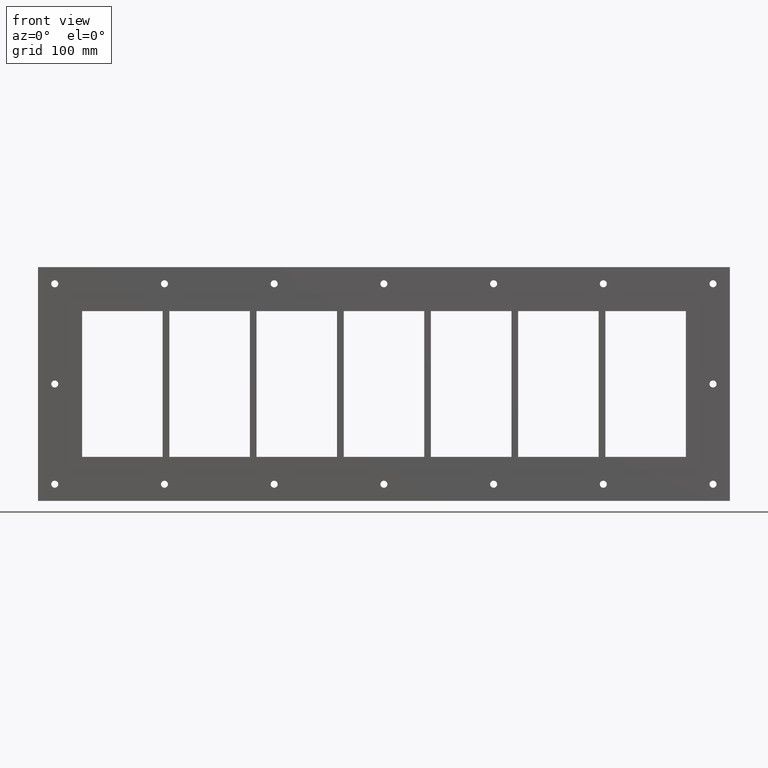
[diagram: clean part render]
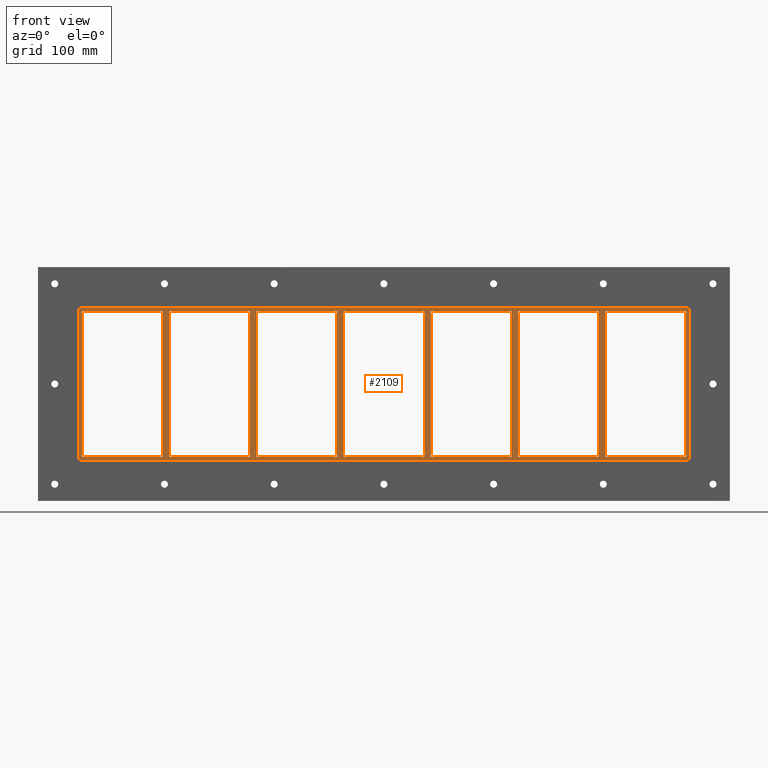
[diagram: same view with one face highlighted and labeled with its STEP entity id]
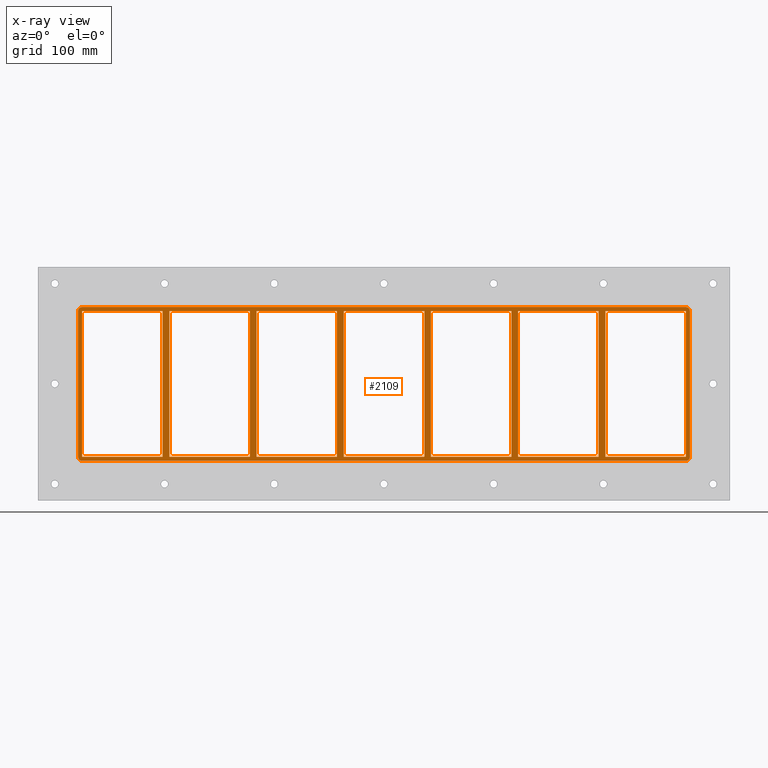
[diagram: x-ray of the same camera — body ghosted, the highlighted face saturated]
A machine part, front view. The second image highlights one B-rep face of the part: STEP entity #2109.
The next image is the same camera in x-ray: the body ghosted, the highlighted face saturated — about 0% of this face is hidden behind the body in this view.
In plain terms, the highlighted planar face has unit normal (0, 1, 0).
Its self-contained STEP definition (entity closure, byte-faithful):
#521=CARTESIAN_POINT('',(321.24999999999784,-3.0,-108.99999999999999));
#522=VERTEX_POINT('',#521);
#523=CARTESIAN_POINT('',(321.24999999999784,-3.0,108.99999999999999));
#524=VERTEX_POINT('',#523);
#525=CARTESIAN_POINT('',(321.24999999999784,-3.0,-108.99999999999999));
#526=DIRECTION('',(0.0,0.0,1.0));
#527=VECTOR('',#526,217.99999999999997);
#528=LINE('',#525,#527);
#529=EDGE_CURVE('',#522,#524,#528,.T.);
#561=CARTESIAN_POINT('',(331.25,-3.0,108.99999999999999));
#562=VERTEX_POINT('',#561);
#563=CARTESIAN_POINT('',(331.25,-3.0,-108.9999999999869));
#564=VERTEX_POINT('',#563);
#565=CARTESIAN_POINT('',(331.25,-3.0,108.99999999999999));
#566=DIRECTION('',(0.0,0.0,-1.0));
#567=VECTOR('',#566,217.9999999999869);
#568=LINE('',#565,#567);
#569=EDGE_CURVE('',#562,#564,#568,.T.);
#601=CARTESIAN_POINT('',(190.74999999999793,-3.0,-108.99999999999999));
#602=VERTEX_POINT('',#601);
#603=CARTESIAN_POINT('',(190.74999999999793,-3.0,108.99999999999999));
#604=VERTEX_POINT('',#603);
#605=CARTESIAN_POINT('',(190.74999999999793,-3.0,-108.99999999999999));
#606=DIRECTION('',(0.0,0.0,1.0));
#607=VECTOR('',#606,217.99999999999997);
#608=LINE('',#605,#607);
#609=EDGE_CURVE('',#602,#604,#608,.T.);
#641=CARTESIAN_POINT('',(200.75000000000006,-3.0,108.99999999999999));
#642=VERTEX_POINT('',#641);
#643=CARTESIAN_POINT('',(200.75000000000006,-3.0,-108.9999999999869));
#644=VERTEX_POINT('',#643);
#645=CARTESIAN_POINT('',(200.75000000000006,-3.0,108.99999999999999));
#646=DIRECTION('',(0.0,0.0,-1.0));
#647=VECTOR('',#646,217.9999999999869);
#648=LINE('',#645,#647);
#649=EDGE_CURVE('',#642,#644,#648,.T.);
#681=CARTESIAN_POINT('',(60.249999999997925,-3.0,-108.99999999999999));
#682=VERTEX_POINT('',#681);
#683=CARTESIAN_POINT('',(60.249999999997925,-3.0,108.99999999999999));
#684=VERTEX_POINT('',#683);
#685=CARTESIAN_POINT('',(60.249999999997925,-3.0,-108.99999999999999));
#686=DIRECTION('',(0.0,0.0,1.0));
#687=VECTOR('',#686,217.99999999999997);
#688=LINE('',#685,#687);
#689=EDGE_CURVE('',#682,#684,#688,.T.);
#721=CARTESIAN_POINT('',(70.250000000000057,-3.0,108.99999999999999));
#722=VERTEX_POINT('',#721);
#723=CARTESIAN_POINT('',(70.250000000000057,-3.0,-108.9999999999869));
#724=VERTEX_POINT('',#723);
#725=CARTESIAN_POINT('',(70.250000000000057,-3.0,108.99999999999999));
#726=DIRECTION('',(0.0,0.0,-1.0));
#727=VECTOR('',#726,217.9999999999869);
#728=LINE('',#725,#727);
#729=EDGE_CURVE('',#722,#724,#728,.T.);
#761=CARTESIAN_POINT('',(-70.250000000002117,-3.0,-108.99999999999999));
#762=VERTEX_POINT('',#761);
#763=CARTESIAN_POINT('',(-70.250000000002117,-3.0,108.99999999999999));
#764=VERTEX_POINT('',#763);
#765=CARTESIAN_POINT('',(-70.250000000002117,-3.0,-108.99999999999999));
#766=DIRECTION('',(0.0,0.0,1.0));
#767=VECTOR('',#766,217.99999999999997);
#768=LINE('',#765,#767);
#769=EDGE_CURVE('',#762,#764,#768,.T.);
#801=CARTESIAN_POINT('',(-60.249999999999986,-3.0,108.99999999999999));
#802=VERTEX_POINT('',#801);
#803=CARTESIAN_POINT('',(-60.249999999999986,-3.0,-108.9999999999869));
#804=VERTEX_POINT('',#803);
#805=CARTESIAN_POINT('',(-60.249999999999986,-3.0,108.99999999999999));
#806=DIRECTION('',(0.0,0.0,-1.0));
#807=VECTOR('',#806,217.9999999999869);
#808=LINE('',#805,#807);
#809=EDGE_CURVE('',#802,#804,#808,.T.);
#841=CARTESIAN_POINT('',(-200.75000000000213,-3.0,-108.99999999999999));
#842=VERTEX_POINT('',#841);
#843=CARTESIAN_POINT('',(-200.75000000000213,-3.0,108.99999999999999));
#844=VERTEX_POINT('',#843);
#845=CARTESIAN_POINT('',(-200.75000000000213,-3.0,-108.99999999999999));
#846=DIRECTION('',(0.0,0.0,1.0));
#847=VECTOR('',#846,217.99999999999997);
#848=LINE('',#845,#847);
#849=EDGE_CURVE('',#842,#844,#848,.T.);
#881=CARTESIAN_POINT('',(-190.75,-3.0,108.99999999999999));
#882=VERTEX_POINT('',#881);
#883=CARTESIAN_POINT('',(-190.75,-3.0,-108.9999999999869));
#884=VERTEX_POINT('',#883);
#885=CARTESIAN_POINT('',(-190.75,-3.0,108.99999999999999));
#886=DIRECTION('',(0.0,0.0,-1.0));
#887=VECTOR('',#886,217.9999999999869);
#888=LINE('',#885,#887);
#889=EDGE_CURVE('',#882,#884,#888,.T.);
#930=CARTESIAN_POINT('',(-321.25,-3.0,-108.9999999999869));
#931=VERTEX_POINT('',#930);
#938=CARTESIAN_POINT('',(-200.75000000000213,-3.0,-108.99999999999999));
#939=DIRECTION('',(-1.0,0.0,0.0));
#940=VECTOR('',#939,120.49999999999787);
#941=LINE('',#938,#940);
#942=EDGE_CURVE('',#842,#931,#941,.T.);
#960=CARTESIAN_POINT('',(-70.250000000002132,-3.0,-108.99999999999999));
#961=DIRECTION('',(-1.0,0.0,0.0));
#962=VECTOR('',#961,120.49999999999784);
#963=LINE('',#960,#962);
#964=EDGE_CURVE('',#762,#884,#963,.T.);
#982=CARTESIAN_POINT('',(60.249999999997925,-3.0,-108.99999999999999));
#983=DIRECTION('',(-1.0,0.0,0.0));
#984=VECTOR('',#983,120.4999999999979);
#985=LINE('',#982,#984);
#986=EDGE_CURVE('',#682,#804,#985,.T.);
#1004=CARTESIAN_POINT('',(190.74999999999795,-3.0,-108.99999999999999));
#1005=DIRECTION('',(-1.0,0.0,0.0));
#1006=VECTOR('',#1005,120.4999999999979);
#1007=LINE('',#1004,#1006);
#1008=EDGE_CURVE('',#602,#724,#1007,.T.);
#1026=CARTESIAN_POINT('',(321.24999999999784,-3.0,-108.99999999999999));
#1027=DIRECTION('',(-1.0,0.0,0.0));
#1028=VECTOR('',#1027,120.49999999999778);
#1029=LINE('',#1026,#1028);
#1030=EDGE_CURVE('',#522,#644,#1029,.T.);
#1041=CARTESIAN_POINT('',(451.75000000000006,-3.0,-108.99999999999999));
#1042=VERTEX_POINT('',#1041);
#1043=CARTESIAN_POINT('',(451.75000000000006,-3.0,-108.99999999999999));
#1044=DIRECTION('',(-1.0,0.0,0.0));
#1045=VECTOR('',#1044,120.50000000000006);
#1046=LINE('',#1043,#1045);
#1047=EDGE_CURVE('',#1042,#564,#1046,.T.);
#1072=CARTESIAN_POINT('',(-321.25,-3.0,108.99999999999999));
#1073=VERTEX_POINT('',#1072);
#1074=CARTESIAN_POINT('',(-321.25,-3.0,108.99999999999999));
#1075=DIRECTION('',(1.0,0.0,0.0));
#1076=VECTOR('',#1075,120.49999999999787);
#1077=LINE('',#1074,#1076);
#1078=EDGE_CURVE('',#1073,#844,#1077,.T.);
#1103=CARTESIAN_POINT('',(-190.75,-3.0,108.99999999999999));
#1104=DIRECTION('',(1.0,0.0,0.0));
#1105=VECTOR('',#1104,120.49999999999787);
#1106=LINE('',#1103,#1105);
#1107=EDGE_CURVE('',#882,#764,#1106,.T.);
#1125=CARTESIAN_POINT('',(-60.25,-3.0,108.99999999999999));
#1126=DIRECTION('',(1.0,0.0,0.0));
#1127=VECTOR('',#1126,120.49999999999793);
#1128=LINE('',#1125,#1127);
#1129=EDGE_CURVE('',#802,#684,#1128,.T.);
#1147=CARTESIAN_POINT('',(70.250000000000028,-3.0,108.99999999999999));
#1148=DIRECTION('',(1.0,0.0,0.0));
#1149=VECTOR('',#1148,120.4999999999979);
#1150=LINE('',#1147,#1149);
#1151=EDGE_CURVE('',#722,#604,#1150,.T.);
#1177=CARTESIAN_POINT('',(451.75000000000006,-3.0,108.99999999999999));
#1178=VERTEX_POINT('',#1177);
#1185=CARTESIAN_POINT('',(331.25,-3.0,108.99999999999999));
#1186=DIRECTION('',(1.0,0.0,0.0));
#1187=VECTOR('',#1186,120.5);
#1188=LINE('',#1185,#1187);
#1189=EDGE_CURVE('',#562,#1178,#1188,.T.);
#1200=CARTESIAN_POINT('',(200.75000000000009,-3.0,108.99999999999999));
#1201=DIRECTION('',(1.0,0.0,0.0));
#1202=VECTOR('',#1201,120.49999999999787);
#1203=LINE('',#1200,#1202);
#1204=EDGE_CURVE('',#642,#524,#1203,.T.);
#1221=CARTESIAN_POINT('',(-331.25000000000216,-3.0,-108.99999999999999));
#1222=VERTEX_POINT('',#1221);
#1223=CARTESIAN_POINT('',(-331.25000000000216,-3.0,108.99999999999999));
#1224=VERTEX_POINT('',#1223);
#1225=CARTESIAN_POINT('',(-331.25000000000216,-3.0,-108.99999999999999));
#1226=DIRECTION('',(0.0,0.0,1.0));
#1227=VECTOR('',#1226,217.99999999999997);
#1228=LINE('',#1225,#1227);
#1229=EDGE_CURVE('',#1222,#1224,#1228,.T.);
#1261=CARTESIAN_POINT('',(-321.25,-3.0,108.99999999999999));
#1262=DIRECTION('',(0.0,0.0,-1.0));
#1263=VECTOR('',#1262,217.9999999999869);
#1264=LINE('',#1261,#1263);
#1265=EDGE_CURVE('',#1073,#931,#1264,.T.);
#1292=CARTESIAN_POINT('',(-451.75000000000006,-3.0,-108.99999999999999));
#1293=VERTEX_POINT('',#1292);
#1300=CARTESIAN_POINT('',(-331.25000000000216,-3.0,-108.99999999999999));
#1301=DIRECTION('',(-1.0,0.0,0.0));
#1302=VECTOR('',#1301,120.49999999999784);
#1303=LINE('',#1300,#1302);
#1304=EDGE_CURVE('',#1222,#1293,#1303,.T.);
#1315=CARTESIAN_POINT('',(-451.75000000000006,-3.0,108.99999999999999));
#1316=VERTEX_POINT('',#1315);
#1317=CARTESIAN_POINT('',(-451.75000000000006,-3.0,108.99999999999999));
#1318=DIRECTION('',(1.0,0.0,0.0));
#1319=VECTOR('',#1318,120.4999999999979);
#1320=LINE('',#1317,#1319);
#1321=EDGE_CURVE('',#1316,#1224,#1320,.T.);
#1737=CARTESIAN_POINT('',(-451.75000000000006,-3.0,-108.99999999999999));
#1738=DIRECTION('',(0.0,0.0,1.0));
#1739=VECTOR('',#1738,217.99999999999994);
#1740=LINE('',#1737,#1739);
#1741=EDGE_CURVE('',#1293,#1316,#1740,.T.);
#1752=CARTESIAN_POINT('',(451.75000000000011,-3.0,115.0));
#1753=VERTEX_POINT('',#1752);
#1760=CARTESIAN_POINT('',(457.75000000000006,-3.0,109.0));
#1761=VERTEX_POINT('',#1760);
#1762=CARTESIAN_POINT('',(451.75000000000011,-3.0,109.0));
#1763=DIRECTION('',(0.0,1.0,0.0));
#1764=DIRECTION('',(0.707106781186545,0.0,0.70710678118655));
#1765=AXIS2_PLACEMENT_3D('',#1762,#1763,#1764);
#1766=CIRCLE('',#1765,6.000000000000001);
#1767=EDGE_CURVE('',#1753,#1761,#1766,.T.);
#1817=CARTESIAN_POINT('',(457.75000000000006,-3.0,-108.99999999999999));
#1818=VERTEX_POINT('',#1817);
#1819=CARTESIAN_POINT('',(457.75000000000006,-3.0,-109.0));
#1820=DIRECTION('',(0.0,0.0,1.0));
#1821=VECTOR('',#1820,218.0);
#1822=LINE('',#1819,#1821);
#1823=EDGE_CURVE('',#1818,#1761,#1822,.T.);
#1864=CARTESIAN_POINT('',(-451.75000000000011,-3.0,115.0));
#1865=VERTEX_POINT('',#1864);
#1872=CARTESIAN_POINT('',(451.75000000000017,-3.0,115.0));
#1873=DIRECTION('',(-1.0,0.0,0.0));
#1874=VECTOR('',#1873,903.50000000000023);
#1875=LINE('',#1872,#1874);
#1876=EDGE_CURVE('',#1753,#1865,#1875,.T.);
#1889=CARTESIAN_POINT('',(451.75000000000011,-3.0,-115.0));
#1890=VERTEX_POINT('',#1889);
#1891=CARTESIAN_POINT('',(451.75000000000011,-3.0,-108.99999999999999));
#1892=DIRECTION('',(0.0,1.0,0.0));
#1893=DIRECTION('',(0.707106781186543,0.0,-0.707106781186552));
#1894=AXIS2_PLACEMENT_3D('',#1891,#1892,#1893);
#1895=CIRCLE('',#1894,6.000000000000001);
#1896=EDGE_CURVE('',#1818,#1890,#1895,.T.);
#1938=CARTESIAN_POINT('',(-457.75000000000006,-3.0,108.99999999999999));
#1939=VERTEX_POINT('',#1938);
#1946=CARTESIAN_POINT('',(-451.75000000000011,-3.0,108.99999999999999));
#1947=DIRECTION('',(0.0,1.0,0.0));
#1948=DIRECTION('',(-0.707106781186543,0.0,0.707106781186552));
#1949=AXIS2_PLACEMENT_3D('',#1946,#1947,#1948);
#1950=CIRCLE('',#1949,6.000000000000001);
#1951=EDGE_CURVE('',#1939,#1865,#1950,.T.);
#1964=CARTESIAN_POINT('',(-451.75000000000011,-3.0,-115.0));
#1965=VERTEX_POINT('',#1964);
#1966=CARTESIAN_POINT('',(-451.75000000000017,-3.0,-115.0));
#1967=DIRECTION('',(1.0,0.0,0.0));
#1968=VECTOR('',#1967,903.50000000000023);
#1969=LINE('',#1966,#1968);
#1970=EDGE_CURVE('',#1965,#1890,#1969,.T.);
#2011=CARTESIAN_POINT('',(-457.75000000000006,-3.0,-108.99999999999999));
#2012=VERTEX_POINT('',#2011);
#2019=CARTESIAN_POINT('',(-457.75000000000006,-3.0,109.0));
#2020=DIRECTION('',(0.0,0.0,-1.0));
#2021=VECTOR('',#2020,218.0);
#2022=LINE('',#2019,#2021);
#2023=EDGE_CURVE('',#1939,#2012,#2022,.T.);
#2036=CARTESIAN_POINT('',(-451.75000000000011,-3.0,-108.99999999999999));
#2037=DIRECTION('',(0.0,1.0,0.0));
#2038=DIRECTION('',(-0.707106781186543,0.0,-0.707106781186552));
#2039=AXIS2_PLACEMENT_3D('',#2036,#2037,#2038);
#2040=CIRCLE('',#2039,6.000000000000001);
#2041=EDGE_CURVE('',#1965,#2012,#2040,.T.);
#2047=CARTESIAN_POINT('',(0.0,-3.0,0.0));
#2048=DIRECTION('',(0.0,1.0,0.0));
#2049=DIRECTION('',(0.0,0.0,1.0));
#2050=AXIS2_PLACEMENT_3D('',#2047,#2048,#2049);
#2051=PLANE('',#2050);
#2052=ORIENTED_EDGE('',*,*,#1896,.F.);
#2053=ORIENTED_EDGE('',*,*,#1823,.T.);
#2054=ORIENTED_EDGE('',*,*,#1767,.F.);
#2055=ORIENTED_EDGE('',*,*,#1876,.T.);
#2056=ORIENTED_EDGE('',*,*,#1951,.F.);
#2057=ORIENTED_EDGE('',*,*,#2023,.T.);
#2058=ORIENTED_EDGE('',*,*,#2041,.F.);
#2059=ORIENTED_EDGE('',*,*,#1970,.T.);
#2060=EDGE_LOOP('',(#2052,#2053,#2054,#2055,#2056,#2057,#2058,#2059));
#2061=FACE_OUTER_BOUND('',#2060,.T.);
#2062=ORIENTED_EDGE('',*,*,#1030,.T.);
#2063=ORIENTED_EDGE('',*,*,#649,.F.);
#2064=ORIENTED_EDGE('',*,*,#1204,.T.);
#2065=ORIENTED_EDGE('',*,*,#529,.F.);
#2066=EDGE_LOOP('',(#2062,#2063,#2064,#2065));
#2067=FACE_BOUND('',#2066,.T.);
#2068=ORIENTED_EDGE('',*,*,#1008,.T.);
#2069=ORIENTED_EDGE('',*,*,#729,.F.);
#2070=ORIENTED_EDGE('',*,*,#1151,.T.);
#2071=ORIENTED_EDGE('',*,*,#609,.F.);
#2072=EDGE_LOOP('',(#2068,#2069,#2070,#2071));
#2073=FACE_BOUND('',#2072,.T.);
#2074=ORIENTED_EDGE('',*,*,#986,.T.);
#2075=ORIENTED_EDGE('',*,*,#809,.F.);
#2076=ORIENTED_EDGE('',*,*,#1129,.T.);
#2077=ORIENTED_EDGE('',*,*,#689,.F.);
#2078=EDGE_LOOP('',(#2074,#2075,#2076,#2077));
#2079=FACE_BOUND('',#2078,.T.);
#2080=ORIENTED_EDGE('',*,*,#964,.T.);
#2081=ORIENTED_EDGE('',*,*,#889,.F.);
#2082=ORIENTED_EDGE('',*,*,#1107,.T.);
#2083=ORIENTED_EDGE('',*,*,#769,.F.);
#2084=EDGE_LOOP('',(#2080,#2081,#2082,#2083));
#2085=FACE_BOUND('',#2084,.T.);
#2086=ORIENTED_EDGE('',*,*,#942,.T.);
#2087=ORIENTED_EDGE('',*,*,#1265,.F.);
#2088=ORIENTED_EDGE('',*,*,#1078,.T.);
#2089=ORIENTED_EDGE('',*,*,#849,.F.);
#2090=EDGE_LOOP('',(#2086,#2087,#2088,#2089));
#2091=FACE_BOUND('',#2090,.T.);
#2092=ORIENTED_EDGE('',*,*,#1304,.T.);
#2093=ORIENTED_EDGE('',*,*,#1741,.T.);
#2094=ORIENTED_EDGE('',*,*,#1321,.T.);
#2095=ORIENTED_EDGE('',*,*,#1229,.F.);
#2096=EDGE_LOOP('',(#2092,#2093,#2094,#2095));
#2097=FACE_BOUND('',#2096,.T.);
#2098=ORIENTED_EDGE('',*,*,#569,.F.);
#2099=ORIENTED_EDGE('',*,*,#1189,.T.);
#2100=CARTESIAN_POINT('',(451.75000000000006,-3.0,108.99999999999999));
#2101=DIRECTION('',(0.0,0.0,-1.0));
#2102=VECTOR('',#2101,217.99999999999994);
#2103=LINE('',#2100,#2102);
#2104=EDGE_CURVE('',#1178,#1042,#2103,.T.);
#2105=ORIENTED_EDGE('',*,*,#2104,.T.);
#2106=ORIENTED_EDGE('',*,*,#1047,.T.);
#2107=EDGE_LOOP('',(#2098,#2099,#2105,#2106));
#2108=FACE_BOUND('',#2107,.T.);
#2109=ADVANCED_FACE('',(#2061,#2067,#2073,#2079,#2085,#2091,#2097,#2108),#2051,.F.);